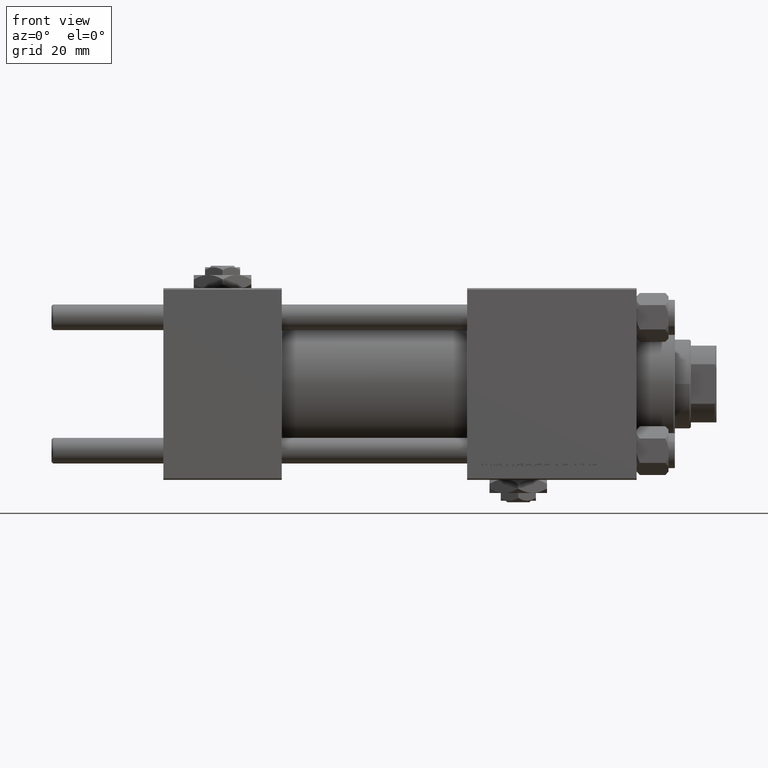
[diagram: clean part render]
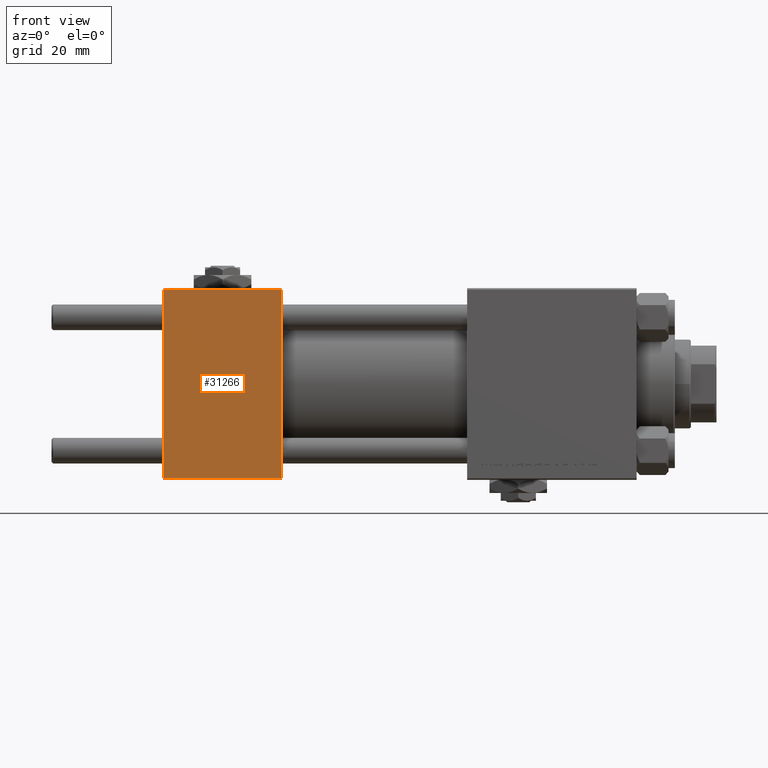
[diagram: same view with one face highlighted and labeled with its STEP entity id]
A machine part, front view. The second image highlights one B-rep face of the part: STEP entity #31266.
In plain terms, the highlighted planar face has unit normal (0, 1, 0).
Its self-contained STEP definition (entity closure, byte-faithful):
#2085 = DIRECTION ( 'NONE',  ( 0.000000000000000000, 0.000000000000000000, -1.000000000000000000 ) ) ;
#2169 = ORIENTED_EDGE ( 'NONE', *, *, #38791, .T. ) ;
#2680 = LINE ( 'NONE', #50981, #27486 ) ;
#3936 = VECTOR ( 'NONE', #2085, 1000.000000000000000 ) ;
#4000 = CARTESIAN_POINT ( 'NONE',  ( 37.00000000000000000, -30.00000000000000000, 29.99999999999999289 ) ) ;
#4235 = ORIENTED_EDGE ( 'NONE', *, *, #39502, .T. ) ;
#6047 = CARTESIAN_POINT ( 'NONE',  ( 0.000000000000000000, -30.00000000000000000, -29.50000000000001776 ) ) ;
#8604 = DIRECTION ( 'NONE',  ( -1.000000000000000000, 0.000000000000000000, 0.000000000000000000 ) ) ;
#10894 = VERTEX_POINT ( 'NONE', #22982 ) ;
#11087 = VERTEX_POINT ( 'NONE', #6047 ) ;
#13297 = CARTESIAN_POINT ( 'NONE',  ( 37.00000000000000000, -30.00000000000000000, 29.49999999999999289 ) ) ;
#13382 = LINE ( 'NONE', #32818, #3936 ) ;
#14282 = CARTESIAN_POINT ( 'NONE',  ( 37.00000000000000000, -30.00000000000000000, -29.50000000000001776 ) ) ;
#16194 = PLANE ( 'NONE',  #39048 ) ;
#17774 = VECTOR ( 'NONE', #28925, 1000.000000000000000 ) ;
#17924 = EDGE_CURVE ( 'NONE', #23900, #18542, #43908, .T. ) ;
#18542 = VERTEX_POINT ( 'NONE', #14282 ) ;
#21444 = CARTESIAN_POINT ( 'NONE',  ( 37.00000000000000000, -30.00000000000000000, 29.99999999999999289 ) ) ;
#22388 = DIRECTION ( 'NONE',  ( 1.000000000000000000, 0.000000000000000000, 0.000000000000000000 ) ) ;
#22982 = CARTESIAN_POINT ( 'NONE',  ( 0.000000000000000000, -30.00000000000000000, 29.49999999999999289 ) ) ;
#23234 = EDGE_LOOP ( 'NONE', ( #26670, #4235, #37900, #2169 ) ) ;
#23900 = VERTEX_POINT ( 'NONE', #13297 ) ;
#24850 = DIRECTION ( 'NONE',  ( 0.000000000000000000, -0.000000000000000000, 1.000000000000000000 ) ) ;
#26670 = ORIENTED_EDGE ( 'NONE', *, *, #48185, .T. ) ;
#27486 = VECTOR ( 'NONE', #22388, 1000.000000000000000 ) ;
#28303 = CARTESIAN_POINT ( 'NONE',  ( 37.00000000000000000, -30.00000000000000000, 29.49999999999999289 ) ) ;
#28925 = DIRECTION ( 'NONE',  ( 0.000000000000000000, 0.000000000000000000, -1.000000000000000000 ) ) ;
#31266 = ADVANCED_FACE ( 'NONE', ( #47187 ), #16194, .F. ) ;
#32457 = DIRECTION ( 'NONE',  ( -0.000000000000000000, 1.000000000000000000, 0.000000000000000000 ) ) ;
#32818 = CARTESIAN_POINT ( 'NONE',  ( 0.000000000000000000, -30.00000000000000000, 29.99999999999999289 ) ) ;
#37900 = ORIENTED_EDGE ( 'NONE', *, *, #17924, .F. ) ;
#38791 = EDGE_CURVE ( 'NONE', #23900, #10894, #43806, .T. ) ;
#39048 = AXIS2_PLACEMENT_3D ( 'NONE', #21444, #32457, #24850 ) ;
#39502 = EDGE_CURVE ( 'NONE', #11087, #18542, #2680, .T. ) ;
#41812 = VECTOR ( 'NONE', #8604, 1000.000000000000000 ) ;
#43806 = LINE ( 'NONE', #28303, #41812 ) ;
#43908 = LINE ( 'NONE', #4000, #17774 ) ;
#47187 = FACE_OUTER_BOUND ( 'NONE', #23234, .T. ) ;
#48185 = EDGE_CURVE ( 'NONE', #10894, #11087, #13382, .T. ) ;
#50981 = CARTESIAN_POINT ( 'NONE',  ( 37.00000000000000000, -30.00000000000000000, -29.50000000000001776 ) ) ;